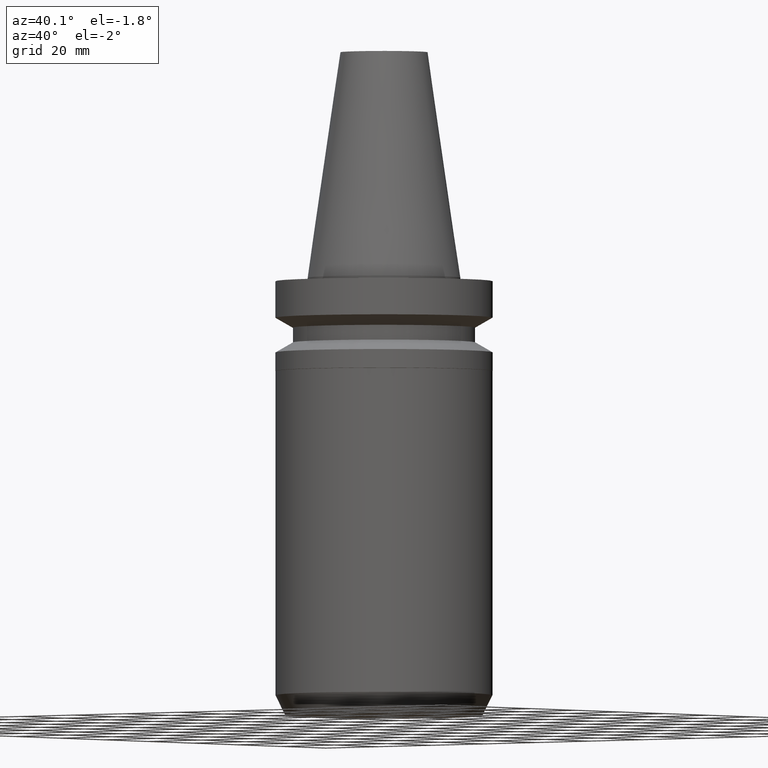
[diagram: clean part render]
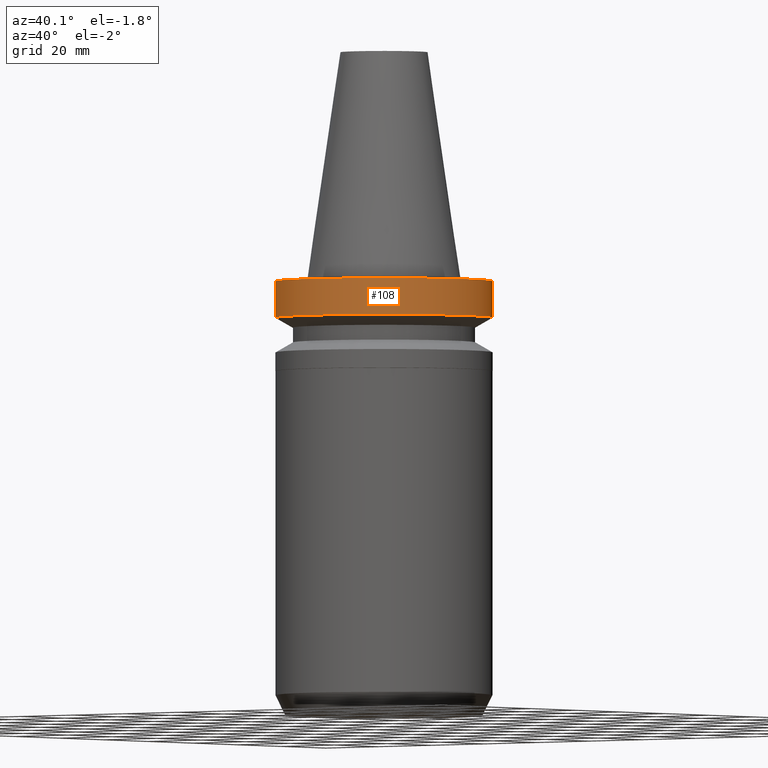
[diagram: same view with one face highlighted and labeled with its STEP entity id]
A machine part, auxiliary view. The second image highlights one B-rep face of the part: STEP entity #108.
In plain terms, the highlighted cylindrical surface (bore or boss wall) has radius 31.5 mm, axis along (0, -0, -1).
Its self-contained STEP definition (entity closure, byte-faithful):
#70=EDGE_CURVE('Unnamed[1]',#164,#164,#165,.T.);
#93=EDGE_CURVE('Unnamed[1]',#199,#199,#200,.T.);
#108=ADVANCED_FACE('Unnamed[1]',(#221,#222),#223,.T.);
#164=VERTEX_POINT('',#281);
#165=CIRCLE('',#282,31.5000000000003);
#199=VERTEX_POINT('',#324);
#200=CIRCLE('',#325,31.4999999999996);
#221=FACE_BOUND('',#351,.T.);
#222=FACE_BOUND('',#352,.T.);
#223=CYLINDRICAL_SURFACE('',#353,31.5);
#281=CARTESIAN_POINT('',(7.08182973902924E-016,31.5000000000004,-11.5655056526664));
#282=AXIS2_PLACEMENT_3D('',#403,#404,#405);
#324=CARTESIAN_POINT('',(6.12323399573568E-017,31.4999999999997,-0.999999999999825));
#325=AXIS2_PLACEMENT_3D('',#440,#441,#442);
#351=EDGE_LOOP('',(#466));
#352=EDGE_LOOP('',(#467));
#353=AXIS2_PLACEMENT_3D('',#468,#469,#470);
#403=CARTESIAN_POINT('',(7.08182973902923E-016,5.24992999089823E-014,-11.5655056526663));
#404=DIRECTION('',(6.12323399573677E-017,-3.16409739642795E-016,-1.0));
#405=DIRECTION('',(1.45473560128602E-032,1.0,-3.16409739642795E-016));
#440=CARTESIAN_POINT('',(6.12323399573563E-017,5.5842328801737E-014,-0.999999999999815));
#441=DIRECTION('',(6.12323399573677E-017,-3.16409739642802E-016,-1.0));
#442=DIRECTION('',(1.45473560128605E-032,1.0,-3.16409739642802E-016));
#466=ORIENTED_EDGE('',*,*,#70,.F.);
#467=ORIENTED_EDGE('',*,*,#93,.T.);
#468=CARTESIAN_POINT('',(3.8470765693014E-016,5.41708143553597E-014,-6.28275282633308));
#469=DIRECTION('',(6.12323399573677E-017,-3.16409739642798E-016,-1.0));
#470=DIRECTION('',(1.45473560128604E-032,1.0,-3.16409739642798E-016));